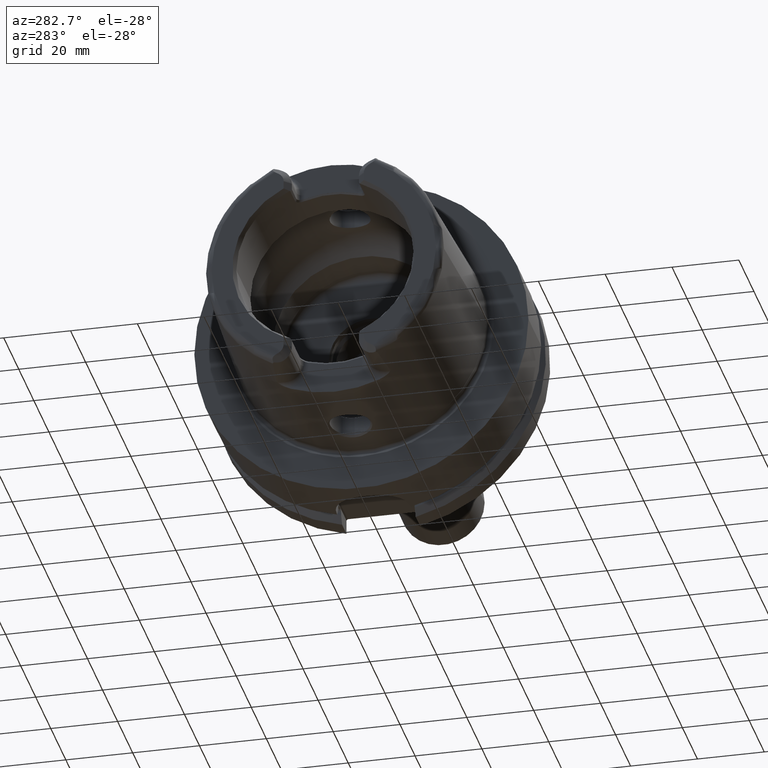
[diagram: clean part render]
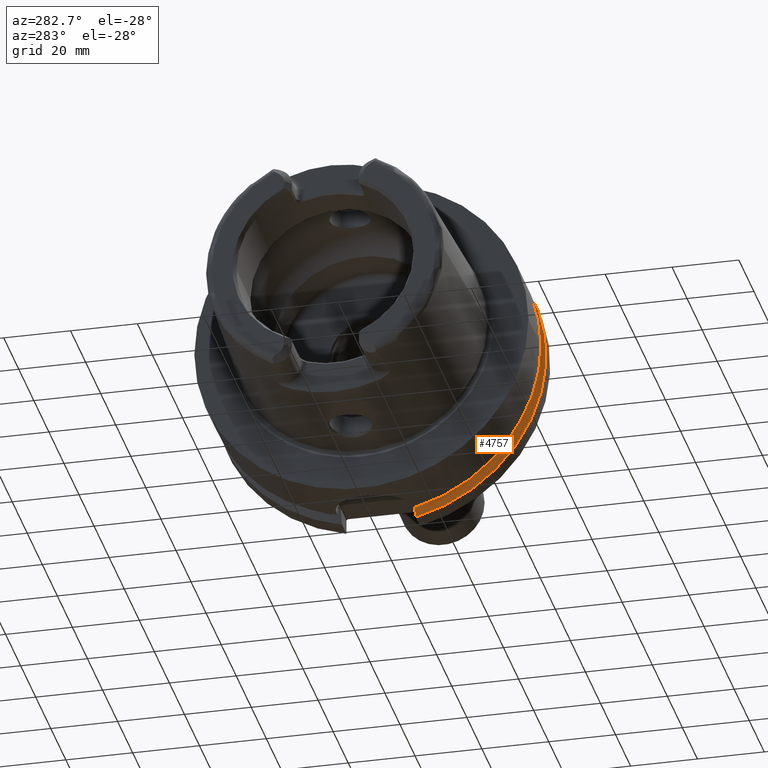
[diagram: same view with one face highlighted and labeled with its STEP entity id]
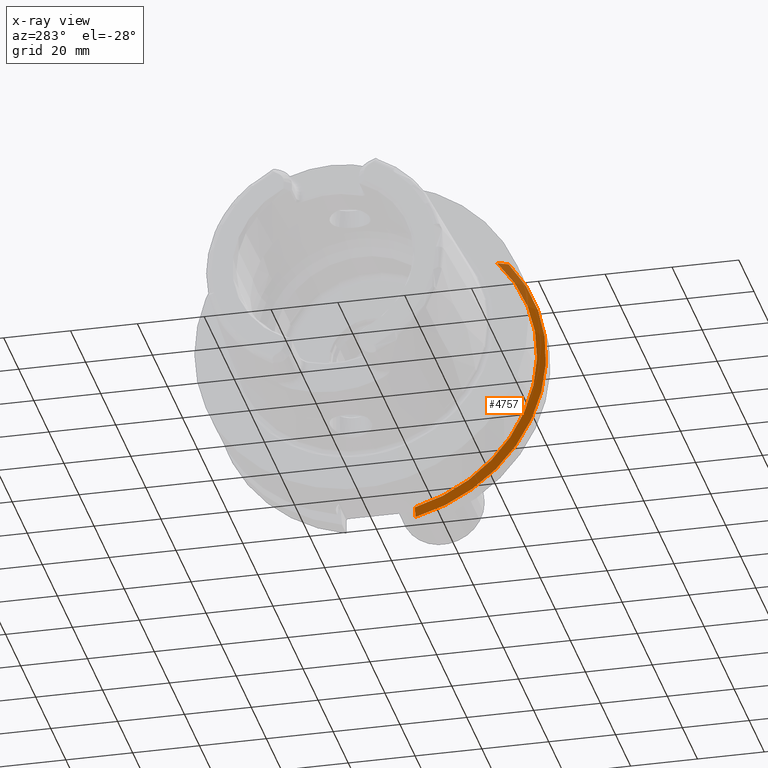
[diagram: x-ray of the same camera — body ghosted, the highlighted face saturated]
A machine part, auxiliary view. The second image highlights one B-rep face of the part: STEP entity #4757.
The next image is the same camera in x-ray: the body ghosted, the highlighted face saturated — about 11% of this face is hidden behind the body in this view.
In plain terms, the highlighted conical surface has half-angle 60 deg.
Its self-contained STEP definition (entity closure, byte-faithful):
#1670=CARTESIAN_POINT('',(2.1875E1,-3.571640491003E1,3.15E1));
#1671=CARTESIAN_POINT('',(2.201925574841E1,-3.604955434192E1,3.15E1));
#1672=CARTESIAN_POINT('',(2.231322476087E1,-3.672437326077E1,3.15E1));
#1673=CARTESIAN_POINT('',(2.277010201186E1,-3.776083400964E1,3.15E1));
#1674=CARTESIAN_POINT('',(2.308650936123E1,-3.847048452534E1,3.15E1));
#1675=CARTESIAN_POINT('',(2.324759526419E1,-3.882975663071E1,3.15E1));
#1677=CARTESIAN_POINT('',(2.324759526419E1,0.E0,0.E0));
#1678=DIRECTION('',(1.E0,0.E0,0.E0));
#1679=DIRECTION('',(0.E0,-7.765951326142E-1,6.3E-1));
#1680=AXIS2_PLACEMENT_3D('',#1677,#1678,#1679);
#1682=CARTESIAN_POINT('',(2.1875E1,-1.1E1,-4.633477721644E1));
#1683=CARTESIAN_POINT('',(2.202318700409E1,-1.1E1,-4.659857839127E1));
#1684=CARTESIAN_POINT('',(2.232244181881E1,-1.1E1,-4.713106867413E1));
#1685=CARTESIAN_POINT('',(2.277988963764E1,-1.1E1,-4.794432689775E1));
#1686=CARTESIAN_POINT('',(2.309072380685E1,-1.1E1,-4.849646015371E1));
#1687=CARTESIAN_POINT('',(2.324759526419E1,-1.1E1,-4.877499359303E1));
#1689=CARTESIAN_POINT('',(2.1875E1,0.E0,0.E0));
#1690=DIRECTION('',(-1.E0,0.E0,0.E0));
#1691=DIRECTION('',(0.E0,-2.309827916554E-1,-9.729578356533E-1));
#1692=AXIS2_PLACEMENT_3D('',#1689,#1690,#1691);
#3006=CARTESIAN_POINT('',(2.324759526419E1,-1.1E1,-4.877499359303E1));
#3008=VERTEX_POINT('',#3006);
#3028=CARTESIAN_POINT('',(2.1875E1,-1.1E1,-4.633477721644E1));
#3029=VERTEX_POINT('',#3028);
#3056=CARTESIAN_POINT('',(2.324759526419E1,-3.882975663071E1,3.15E1));
#3058=VERTEX_POINT('',#3056);
#3080=CARTESIAN_POINT('',(2.1875E1,-3.571640491003E1,3.15E1));
#3081=VERTEX_POINT('',#3080);
#4746=CARTESIAN_POINT('',(2.256129763210E1,0.E0,0.E0));
#4747=DIRECTION('',(1.E0,0.E0,0.E0));
#4748=DIRECTION('',(0.E0,-1.E0,0.E0));
#4749=AXIS2_PLACEMENT_3D('',#4746,#4747,#4748);
#4750=CONICAL_SURFACE('',#4749,4.881129763210E1,6.E1);
#4751=ORIENTED_EDGE('',*,*,#4266,.T.);
#4752=ORIENTED_EDGE('',*,*,#4309,.T.);
#4753=ORIENTED_EDGE('',*,*,#4460,.F.);
#4754=ORIENTED_EDGE('',*,*,#4711,.T.);
#4755=EDGE_LOOP('',(#4751,#4752,#4753,#4754));
#4756=FACE_OUTER_BOUND('',#4755,.F.);
#4757=ADVANCED_FACE('',(#4756),#4750,.T.);
#1676=B_SPLINE_CURVE_WITH_KNOTS('',3,(#1670,#1671,#1672,#1673,#1674,#1675),
.UNSPECIFIED.,.F.,.F.,(4,1,1,4),(0.E0,3.333333333333E-1,6.666666666667E-1,1.E0),
.UNSPECIFIED.);
#1681=CIRCLE('',#1680,5.E1);
#1688=B_SPLINE_CURVE_WITH_KNOTS('',3,(#1682,#1683,#1684,#1685,#1686,#1687),
.UNSPECIFIED.,.F.,.F.,(4,1,1,4),(0.E0,3.333333333333E-1,6.666666666667E-1,1.E0),
.UNSPECIFIED.);
#1693=CIRCLE('',#1692,4.762259526419E1);
#4266=EDGE_CURVE('',#3081,#3058,#1676,.T.);
#4309=EDGE_CURVE('',#3058,#3008,#1681,.T.);
#4460=EDGE_CURVE('',#3029,#3008,#1688,.T.);
#4711=EDGE_CURVE('',#3029,#3081,#1693,.T.);